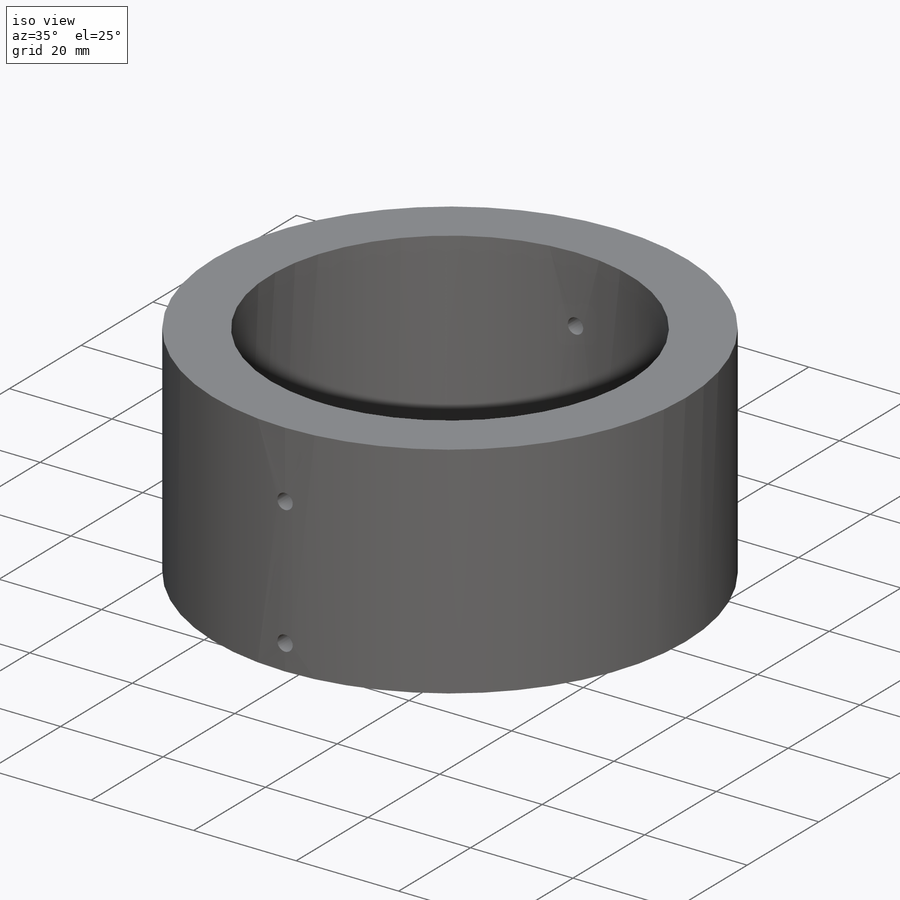
[diagram: iso view]
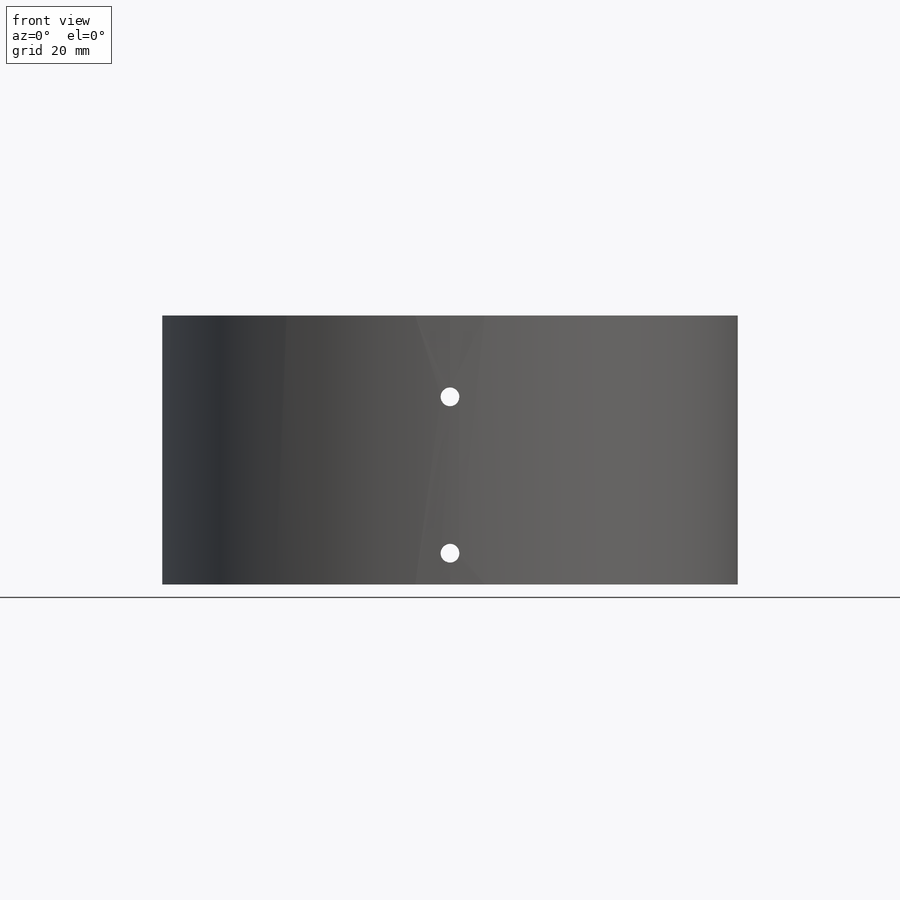
[diagram: front view]
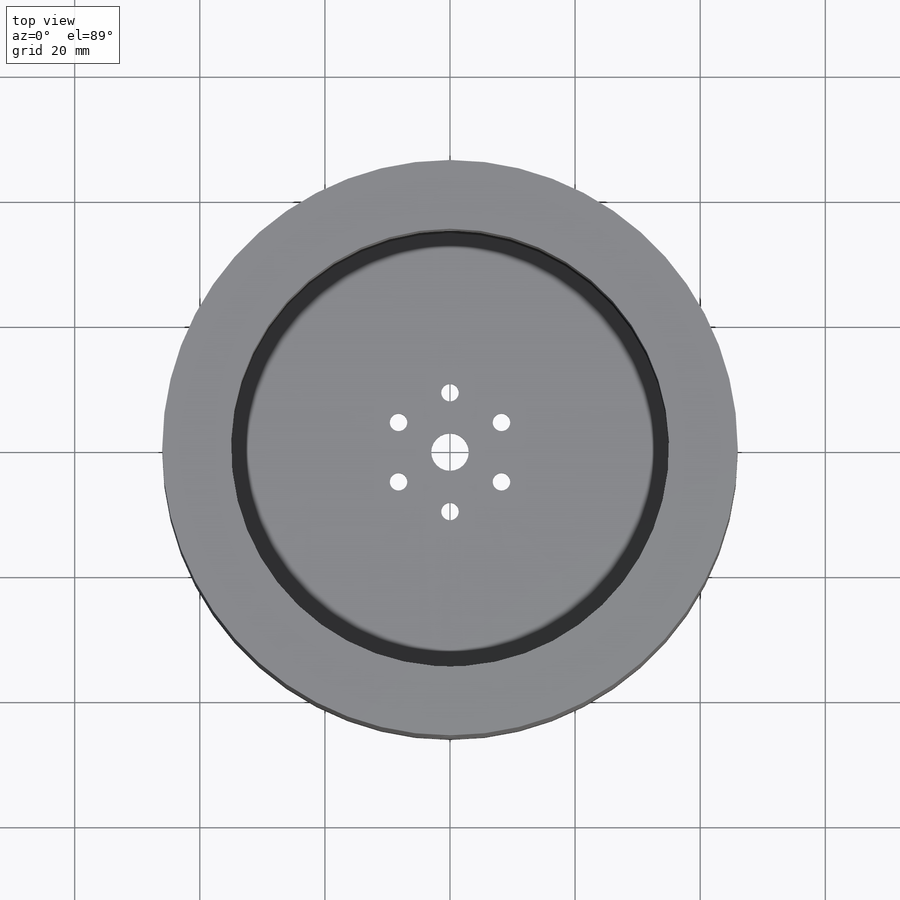
[diagram: top view]
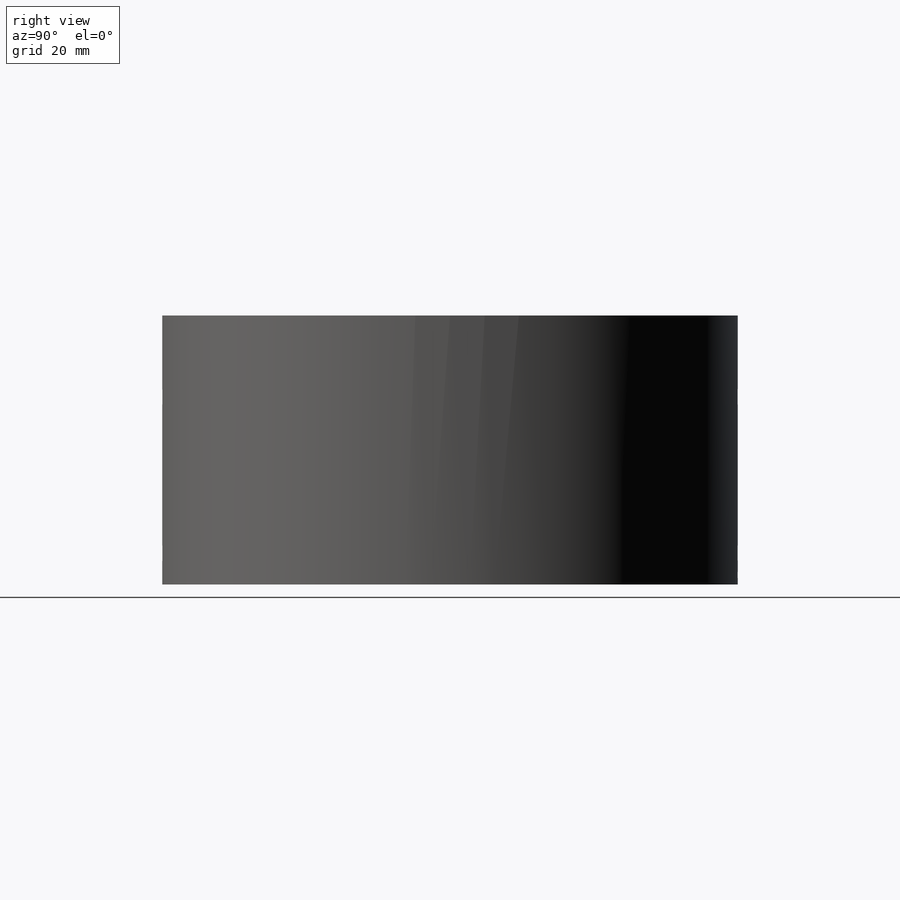
[diagram: right view]
SOLIDWORKS PART (.sldprt)
format: sldprt  version: not decoded by parser v0  size: 216,576 bytes
history: native  units: mm
features: sketch x5, cut_extrude x3, extrude x2, plane x2, material x1 (+12 scaffold rows collapsed)
feature tree (25):
  scaffold x12  (default folders/planes/origin — collapsed)
  material  "1060 Alloy"
  sketch  "Sketch1"  dims[D1=92.0mm D2=6.0mm D3=19.0mm D4=2.8mm D5=6.0]
  extrude  "Boss-Extrude1"  Depth=3mm
  plane  "Plane2"  Offset=46mm
  plane  "Plane3"  Offset=46mm
  sketch  "Sketch6"  dims[c1.D2=2.0mm c1.D1=1.5mm c2.D2=~0.24961mm]
  cut_extrude  "Cut-Extrude2"  Depth=3mm
  sketch  "Sketch7"  dims[D1=70.0mm]
  extrude  "Boss-Extrude2"  Depth=40mm
  sketch  "Sketch8"  dims[c1.D2=3.0mm c1.D1=30.0mm c2.D2=13.0mm]
  cut_extrude  "Cut-Extrude3"  Depth=108mm
  sketch  "Sketch9"  dims[c1.D2=3.0mm c1.D1=5.0mm c2.D2=~30.426445mm]
  cut_extrude  "Cut-Extrude4"  [1 undecoded]
decode coverage: 9 of 10 modeling features carry decoded parameters
note: ~ marks probable driven/reference dimensions
note: 1 parameter value undecoded
note: suppression state not decoded; provenance and decode notes live in map.json
